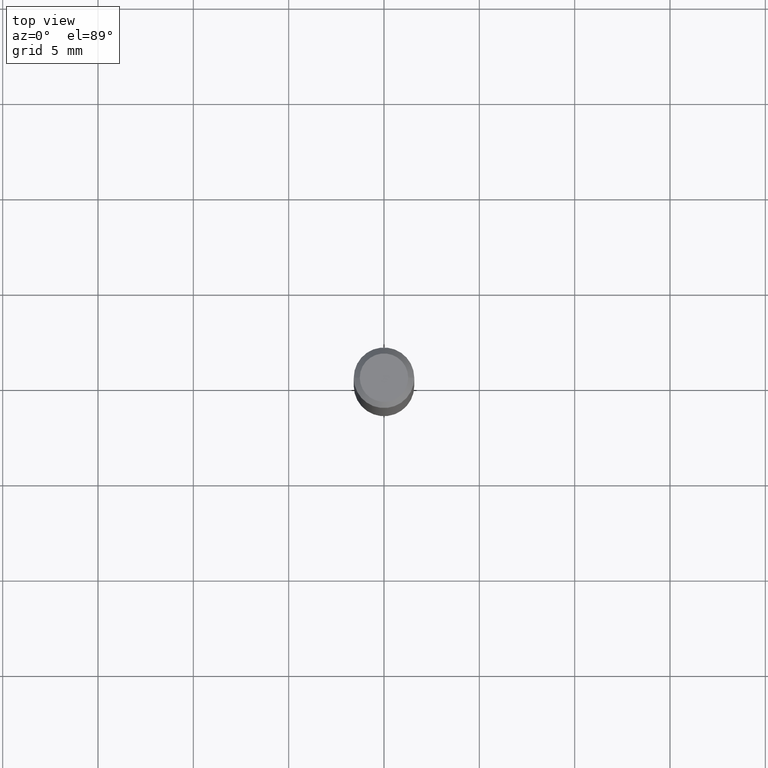
[diagram: clean part render]
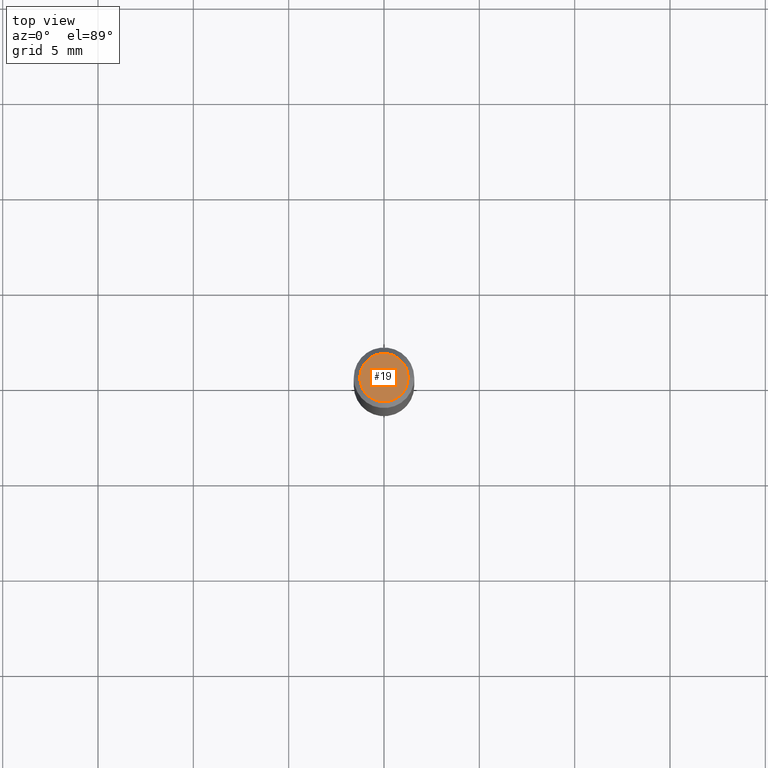
[diagram: same view with one face highlighted and labeled with its STEP entity id]
A machine part, top view. The second image highlights one B-rep face of the part: STEP entity #19.
In plain terms, the highlighted planar face has unit normal (0, -0, -1).
Its self-contained STEP definition (entity closure, byte-faithful):
#11 = CARTESIAN_POINT ( 'NONE',  ( 3.893286209682126177E-47, -5.558580879666067980E-33, -1.592040838891559689E-18 ) ) ;
#16 = FACE_OUTER_BOUND ( 'NONE', #110, .T. ) ;
#19 = ADVANCED_FACE ( 'NONE', ( #16 ), #81, .F. ) ;
#43 = CARTESIAN_POINT ( 'NONE',  ( 0.04999999999999999584, -4.077247707424184705E-16, -1.592040838888913461E-18 ) ) ;
#76 = DIRECTION ( 'NONE',  ( -2.445468806185136597E-29, 3.491481338843145583E-15, 1.000000000000000000 ) ) ;
#81 = PLANE ( 'NONE',  #175 ) ;
#110 = EDGE_LOOP ( 'NONE', ( #482, #445 ) ) ;
#138 = CIRCLE ( 'NONE', #413, 0.04999999999999999584 ) ;
#143 = VERTEX_POINT ( 'NONE', #43 ) ;
#175 = AXIS2_PLACEMENT_3D ( 'NONE', #320, #470, #393 ) ;
#208 = DIRECTION ( 'NONE',  ( 1.000000000000000000, -6.982962677686265922E-15, 4.875957971899673662E-29 ) ) ;
#225 = DIRECTION ( 'NONE',  ( 1.000000000000000000, -6.982962677686265922E-15, 4.875957971899673662E-29 ) ) ;
#276 = CARTESIAN_POINT ( 'NONE',  ( -0.04999999999999999584, 3.709698922520826725E-16, -1.592040838894077649E-18 ) ) ;
#309 = AXIS2_PLACEMENT_3D ( 'NONE', #11, #437, #208 ) ;
#320 = CARTESIAN_POINT ( 'NONE',  ( 1.946643104841063088E-47, -2.779290439833033990E-33, -7.960204194457798443E-19 ) ) ;
#328 = EDGE_CURVE ( 'NONE', #143, #368, #138, .T. ) ;
#368 = VERTEX_POINT ( 'NONE', #276 ) ;
#393 = DIRECTION ( 'NONE',  ( -1.000000000000000000, 6.982962677686265922E-15, -4.876176775795935793E-29 ) ) ;
#413 = AXIS2_PLACEMENT_3D ( 'NONE', #420, #76, #225 ) ;
#415 = EDGE_CURVE ( 'NONE', #368, #143, #440, .T. ) ;
#420 = CARTESIAN_POINT ( 'NONE',  ( 3.893286209682126177E-47, -5.558580879666067980E-33, -1.592040838891559689E-18 ) ) ;
#437 = DIRECTION ( 'NONE',  ( -2.445468806185136597E-29, 3.491481338843145583E-15, 1.000000000000000000 ) ) ;
#440 = CIRCLE ( 'NONE', #309, 0.04999999999999999584 ) ;
#445 = ORIENTED_EDGE ( 'NONE', *, *, #328, .T. ) ;
#470 = DIRECTION ( 'NONE',  ( 2.438088387897960049E-29, -3.491481338843145188E-15, -1.000000000000000000 ) ) ;
#482 = ORIENTED_EDGE ( 'NONE', *, *, #415, .T. ) ;